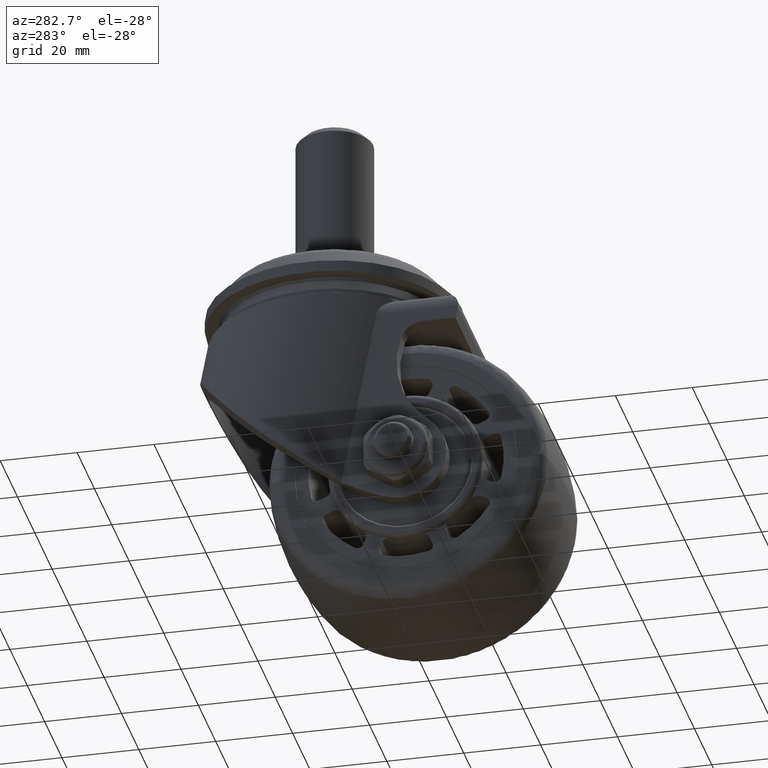
[diagram: clean part render]
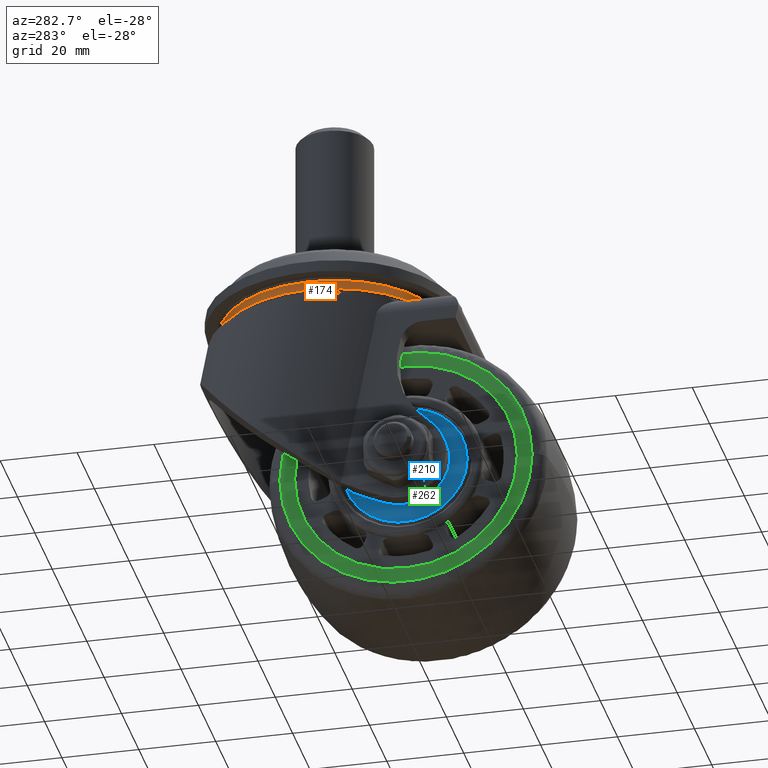
[diagram: same view with three faces highlighted in distinct colors, each labeled with its STEP entity id]
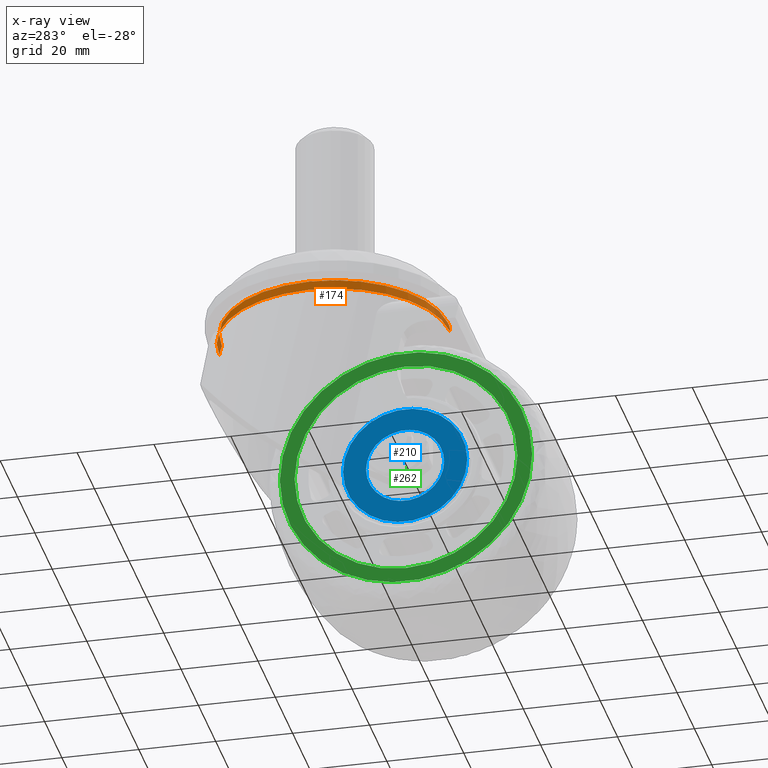
[diagram: x-ray of the same camera — body ghosted, the three highlighted faces saturated]
A machine part, auxiliary view with three faces highlighted in distinct colors.
The next image is the same camera in x-ray (body ghosted, the three faces saturated) — at least one of them is partly hidden behind the body in this view.
Their STEP definitions:

[orange] entity #174 — the highlighted face is a freeform B-spline surface patch.
#174=ADVANCED_FACE('',(#952),#951,.T.);
#951=( BOUNDED_SURFACE() B_SPLINE_SURFACE( 2,2,((#2820,#2821,#2822,#2823,#2824),(#2825,#2826,#2827,#2828,#2829),(#2830,#2831,#2832,#2833,#2834),(#2835,#2836,#2837,#2838,#2839),(#2840,#2841,#2842,#2843,#2844)), .UNSPECIFIED.,.F.,.F.,.F.) B_SPLINE_SURFACE_WITH_KNOTS((3,2,3),(3,2,3),(0.00000000000E+00,5.00000000000E-01,1.00000000000E+00),(0.00000000000E+00,5.00000000000E-01,1.00000000000E+00), .UNSPECIFIED. ) GEOMETRIC_REPRESENTATION_ITEM() RATIONAL_B_SPLINE_SURFACE(((1.00000000000E+00,7.07106781185E-01,1.00000000000E+00,7.07106781185E-01,1.00000000000E+00),(7.07106781187E-01,4.99999999999E-01,7.07106781187E-01,4.99999999999E-01,7.07106781187E-01),(1.00000000000E+00,7.07106781185E-01,1.00000000000E+00,7.07106781185E-01,1.00000000000E+00),(7.07106781187E-01,4.99999999999E-01,7.07106781187E-01,4.99999999999E-01,7.07106781187E-01),(1.00000000000E+00,7.07106781185E-01,1.00000000000E+00,7.07106781185E-01,1.00000000000E+00))) REPRESENTATION_ITEM('') SURFACE() );
#952=FACE_OUTER_BOUND('',#2845,.T.);
#2820=CARTESIAN_POINT('',(1.01980428174E-14,-1.40000179291E+01,1.80000000000E+01));
#2821=CARTESIAN_POINT('',(1.01980428173E-14,-8.00001792911E+00,1.80000000000E+01));
#2822=CARTESIAN_POINT('',(1.35973904231E-14,-8.00001792909E+00,2.40000000000E+01));
#2823=CARTESIAN_POINT('',(1.69967380289E-14,-8.00001792907E+00,3.00000000000E+01));
#2824=CARTESIAN_POINT('',(1.69967380289E-14,-1.40000179291E+01,3.00000000000E+01));
#2825=CARTESIAN_POINT('',(-1.80000000000E+01,-1.40000179291E+01,1.80000000000E+01));
#2826=CARTESIAN_POINT('',(-1.80000000000E+01,-8.00001792911E+00,1.80000000000E+01));
#2827=CARTESIAN_POINT('',(-2.40000000000E+01,-8.00001792909E+00,2.40000000000E+01));
#2828=CARTESIAN_POINT('',(-3.00000000000E+01,-8.00001792907E+00,3.00000000000E+01));
#2829=CARTESIAN_POINT('',(-3.00000000000E+01,-1.40000179291E+01,3.00000000000E+01));
#2830=CARTESIAN_POINT('',(-1.80000000000E+01,-1.40000179291E+01,1.47696718885E-14));
#2831=CARTESIAN_POINT('',(-1.80000000000E+01,-8.00001792911E+00,1.31043373516E-14));
#2832=CARTESIAN_POINT('',(-2.40000000000E+01,-8.00001792909E+00,1.68710789971E-14));
#2833=CARTESIAN_POINT('',(-3.00000000000E+01,-8.00001792907E+00,2.06378206427E-14));
#2834=CARTESIAN_POINT('',(-3.00000000000E+01,-1.40000179291E+01,2.23031551796E-14));
#2835=CARTESIAN_POINT('',(-1.80000000000E+01,-1.40000179291E+01,-1.80000000000E+01));
#2836=CARTESIAN_POINT('',(-1.80000000000E+01,-8.00001792911E+00,-1.80000000000E+01));
#2837=CARTESIAN_POINT('',(-2.40000000000E+01,-8.00001792909E+00,-2.40000000000E+01));
#2838=CARTESIAN_POINT('',(-3.00000000000E+01,-8.00001792907E+00,-3.00000000000E+01));
#2839=CARTESIAN_POINT('',(-3.00000000000E+01,-1.40000179291E+01,-3.00000000000E+01));
#2840=CARTESIAN_POINT('',(-1.24024070558E-14,-1.40000179291E+01,-1.80000000000E+01));
#2841=CARTESIAN_POINT('',(-1.24024070558E-14,-8.00001792911E+00,-1.80000000000E+01));
#2842=CARTESIAN_POINT('',(-1.65365427411E-14,-8.00001792909E+00,-2.40000000000E+01));
#2843=CARTESIAN_POINT('',(-2.06706784264E-14,-8.00001792907E+00,-3.00000000000E+01));
#2844=CARTESIAN_POINT('',(-2.06706784264E-14,-1.40000179291E+01,-3.00000000000E+01));
#2845=EDGE_LOOP('',(#4480,#4481,#4482,#4483));
#4480=ORIENTED_EDGE('',*,*,#5413,.F.);
#4481=ORIENTED_EDGE('',*,*,#5410,.T.);
#4482=ORIENTED_EDGE('',*,*,#5414,.F.);
#4483=ORIENTED_EDGE('',*,*,#5412,.F.);
#5410=EDGE_CURVE('',#6937,#6929,#6938,.T.);
#5412=EDGE_CURVE('',#6944,#6930,#6951,.T.);
#5413=EDGE_CURVE('',#6937,#6944,#6957,.T.);
#5414=EDGE_CURVE('',#6930,#6929,#6963,.T.);
#6929=VERTEX_POINT('',#10361);
#6930=VERTEX_POINT('',#10362);
#6937=VERTEX_POINT('',#10367);
#6938=(BOUNDED_CURVE() B_SPLINE_CURVE(2,(#10368,#10369,#10370),.UNSPECIFIED.,.F.,.F.) B_SPLINE_CURVE_WITH_KNOTS((3,3),(8.46979384621E-01,1.00000000000E+00),.UNSPECIFIED.) CURVE() GEOMETRIC_REPRESENTATION_ITEM() RATIONAL_B_SPLINE_CURVE((8.75590678817E-01,9.10362598834E-01,1.00000000000E+00)) REPRESENTATION_ITEM('') );
#6944=VERTEX_POINT('',#10371);
#6951=(BOUNDED_CURVE() B_SPLINE_CURVE(2,(#10376,#10377,#10378),.UNSPECIFIED.,.F.,.F.) B_SPLINE_CURVE_WITH_KNOTS((3,3),(8.46979321031E-01,1.00000000000E+00),.UNSPECIFIED.) CURVE() GEOMETRIC_REPRESENTATION_ITEM() RATIONAL_B_SPLINE_CURVE((6.56692987437E-01,6.82771921187E-01,7.50000000000E-01)) REPRESENTATION_ITEM('') );
#6957=CIRCLE('',#10382,2.93581900000E+01);
#6963=CIRCLE('',#10386,3.00000000000E+01);
#10361=CARTESIAN_POINT('',(0.00000000000E+00,-1.40000179291E+01,-3.00000000000E+01));
#10362=CARTESIAN_POINT('',(2.36847578587E-15,-1.40000179291E+01,3.00000000000E+01));
#10367=CARTESIAN_POINT('',(-2.01320441799E-14,-1.13000420205E+01,-2.93581900000E+01));
#10368=CARTESIAN_POINT('',(-1.30377718291E-14,-1.13000446543E+01,-2.93581847967E+01));
#10369=CARTESIAN_POINT('',(-1.33227976315E-14,-1.25737478042E+01,-3.00000000000E+01));
#10370=CARTESIAN_POINT('',(-1.33227976315E-14,-1.40000179291E+01,-3.00000000000E+01));
#10371=CARTESIAN_POINT('',(0.00000000000E+00,-1.13000420205E+01,2.93581900000E+01));
#10376=CARTESIAN_POINT('',(1.27740217568E-14,-1.13000435536E+01,2.93581842421E+01));
#10377=CARTESIAN_POINT('',(1.31149280600E-14,-1.25737471531E+01,3.00000000000E+01));
#10378=CARTESIAN_POINT('',(1.30266168223E-14,-1.40000179291E+01,3.00000000000E+01));
#10379=CARTESIAN_POINT('',(0.00000000000E+00,-1.13000420205E+01,7.10542735760E-14));
#10380=DIRECTION('',(0.00000000000E+00,1.00000000000E+00,-0.00000000000E+00));
#10381=DIRECTION('',(-1.22460635382E-16,0.00000000000E+00,1.00000000000E+00));
#10382=AXIS2_PLACEMENT_3D('',#10379,#10380,#10381);
#10383=CARTESIAN_POINT('',(0.00000000000E+00,-1.40000179291E+01,2.99760714282E-15));
#10384=DIRECTION('',(0.00000000000E+00,-1.00000000000E+00,2.77555756156E-16));
#10385=DIRECTION('',(-1.22460635382E-16,-2.77555756156E-16,-1.00000000000E+00));
#10386=AXIS2_PLACEMENT_3D('',#10383,#10384,#10385);

[blue] entity #210 — the highlighted planar face has unit normal (-1, 0, 0).
#210=ADVANCED_FACE('',(#1313,#1314),#1312,.T.);
#1312=PLANE('',#3255);
#1313=FACE_OUTER_BOUND('',#3256,.T.);
#1314=FACE_BOUND('',#3257,.T.);
#3252=CARTESIAN_POINT('',(-2.10000000000E+01,-3.35751387313E+01,-2.10000000000E+01));
#3253=DIRECTION('',(-1.00000000000E+00,0.00000000000E+00,0.00000000000E+00));
#3254=DIRECTION('',(0.00000000000E+00,0.00000000000E+00,1.00000000000E+00));
#3255=AXIS2_PLACEMENT_3D('',#3252,#3253,#3254);
#3256=EDGE_LOOP('',(#4628,#4629));
#3257=EDGE_LOOP('',(#4630,#4631));
#4628=ORIENTED_EDGE('',*,*,#5467,.F.);
#4629=ORIENTED_EDGE('',*,*,#5468,.F.);
#4630=ORIENTED_EDGE('',*,*,#5469,.T.);
#4631=ORIENTED_EDGE('',*,*,#5470,.T.);
#5467=EDGE_CURVE('',#7299,#7300,#7301,.T.);
#5468=EDGE_CURVE('',#7300,#7299,#7307,.T.);
#5469=EDGE_CURVE('',#7313,#7314,#7315,.T.);
#5470=EDGE_CURVE('',#7314,#7313,#7321,.T.);
#7299=VERTEX_POINT('',#10559);
#7300=VERTEX_POINT('',#10560);
#7301=CIRCLE('',#10564,1.61538461538E+01);
#7307=CIRCLE('',#10568,1.61538461538E+01);
#7313=VERTEX_POINT('',#10569);
#7314=VERTEX_POINT('',#10570);
#7315=CIRCLE('',#10574,1.01538465000E+01);
#7321=CIRCLE('',#10578,1.01538465000E+01);
#10559=CARTESIAN_POINT('',(-2.10000000000E+01,1.77635683940E-15,1.61538461538E+01));
#10560=CARTESIAN_POINT('',(-2.10000000000E+01,0.00000000000E+00,-1.61538461538E+01));
#10561=CARTESIAN_POINT('',(-2.10000000000E+01,0.00000000000E+00,0.00000000000E+00));
#10562=DIRECTION('',(1.00000000000E+00,0.00000000000E+00,0.00000000000E+00));
#10563=DIRECTION('',(0.00000000000E+00,-1.22460635382E-16,-1.00000000000E+00));
#10564=AXIS2_PLACEMENT_3D('',#10561,#10562,#10563);
#10565=CARTESIAN_POINT('',(-2.10000000000E+01,0.00000000000E+00,0.00000000000E+00));
#10566=DIRECTION('',(1.00000000000E+00,0.00000000000E+00,0.00000000000E+00));
#10567=DIRECTION('',(0.00000000000E+00,-1.22460635382E-16,-1.00000000000E+00));
#10568=AXIS2_PLACEMENT_3D('',#10565,#10566,#10567);
#10569=CARTESIAN_POINT('',(-2.10000000000E+01,0.00000000000E+00,-1.01538465000E+01));
#10570=CARTESIAN_POINT('',(-2.10000000000E+01,5.92118946467E-16,1.01538465000E+01));
#10571=CARTESIAN_POINT('',(-2.10000000000E+01,0.00000000000E+00,0.00000000000E+00));
#10572=DIRECTION('',(1.00000000000E+00,0.00000000000E+00,0.00000000000E+00));
#10573=DIRECTION('',(0.00000000000E+00,-1.22460635382E-16,-1.00000000000E+00));
#10574=AXIS2_PLACEMENT_3D('',#10571,#10572,#10573);
#10575=CARTESIAN_POINT('',(-2.10000000000E+01,0.00000000000E+00,0.00000000000E+00));
#10576=DIRECTION('',(1.00000000000E+00,0.00000000000E+00,0.00000000000E+00));
#10577=DIRECTION('',(0.00000000000E+00,-1.22460635382E-16,-1.00000000000E+00));
#10578=AXIS2_PLACEMENT_3D('',#10575,#10576,#10577);

[green] entity #262 — the highlighted planar face has unit normal (-1, 0, 0).
#262=ADVANCED_FACE('',(#1838,#1839),#1837,.T.);
#1837=PLANE('',#3520);
#1838=FACE_OUTER_BOUND('',#3521,.T.);
#1839=FACE_BOUND('',#3522,.T.);
#3517=CARTESIAN_POINT('',(-2.00000000000E+01,-6.68282465317E+01,-4.26527444625E+01));
#3518=DIRECTION('',(-1.00000000000E+00,0.00000000000E+00,0.00000000000E+00));
#3519=DIRECTION('',(0.00000000000E+00,0.00000000000E+00,1.00000000000E+00));
#3520=AXIS2_PLACEMENT_3D('',#3517,#3518,#3519);
#3521=EDGE_LOOP('',(#4898,#4899));
#3522=EDGE_LOOP('',(#4900,#4901));
#4898=ORIENTED_EDGE('',*,*,#5651,.F.);
#4899=ORIENTED_EDGE('',*,*,#5652,.F.);
#4900=ORIENTED_EDGE('',*,*,#5653,.T.);
#4901=ORIENTED_EDGE('',*,*,#5654,.T.);
#5651=EDGE_CURVE('',#8540,#8541,#8542,.T.);
#5652=EDGE_CURVE('',#8541,#8540,#8548,.T.);
#5653=EDGE_CURVE('',#8554,#8555,#8556,.T.);
#5654=EDGE_CURVE('',#8555,#8554,#8562,.T.);
#8540=VERTEX_POINT('',#11348);
#8541=VERTEX_POINT('',#11349);
#8542=CIRCLE('',#11353,3.28098034327E+01);
#8548=CIRCLE('',#11357,3.28098034327E+01);
#8554=VERTEX_POINT('',#11358);
#8555=VERTEX_POINT('',#11359);
#8556=CIRCLE('',#11363,2.89615387500E+01);
#8562=CIRCLE('',#11367,2.89615387500E+01);
#11348=CARTESIAN_POINT('',(-2.00000000000E+01,2.36847578587E-15,3.28098034327E+01));
#11349=CARTESIAN_POINT('',(-2.00000000000E+01,0.00000000000E+00,-3.28098034327E+01));
#11350=CARTESIAN_POINT('',(-2.00000000000E+01,0.00000000000E+00,0.00000000000E+00));
#11351=DIRECTION('',(1.00000000000E+00,0.00000000000E+00,0.00000000000E+00));
#11352=DIRECTION('',(0.00000000000E+00,-1.22460635382E-16,-1.00000000000E+00));
#11353=AXIS2_PLACEMENT_3D('',#11350,#11351,#11352);
#11354=CARTESIAN_POINT('',(-2.00000000000E+01,0.00000000000E+00,0.00000000000E+00));
#11355=DIRECTION('',(1.00000000000E+00,0.00000000000E+00,0.00000000000E+00));
#11356=DIRECTION('',(0.00000000000E+00,-1.22460635382E-16,-1.00000000000E+00));
#11357=AXIS2_PLACEMENT_3D('',#11354,#11355,#11356);
#11358=CARTESIAN_POINT('',(-2.00000000000E+01,0.00000000000E+00,-2.89615387500E+01));
#11359=CARTESIAN_POINT('',(-2.00000000000E+01,1.18423789293E-15,2.89615387500E+01));
#11360=CARTESIAN_POINT('',(-2.00000000000E+01,0.00000000000E+00,0.00000000000E+00));
#11361=DIRECTION('',(1.00000000000E+00,0.00000000000E+00,0.00000000000E+00));
#11362=DIRECTION('',(0.00000000000E+00,-1.22460635382E-16,-1.00000000000E+00));
#11363=AXIS2_PLACEMENT_3D('',#11360,#11361,#11362);
#11364=CARTESIAN_POINT('',(-2.00000000000E+01,0.00000000000E+00,0.00000000000E+00));
#11365=DIRECTION('',(1.00000000000E+00,0.00000000000E+00,0.00000000000E+00));
#11366=DIRECTION('',(0.00000000000E+00,-1.22460635382E-16,-1.00000000000E+00));
#11367=AXIS2_PLACEMENT_3D('',#11364,#11365,#11366);